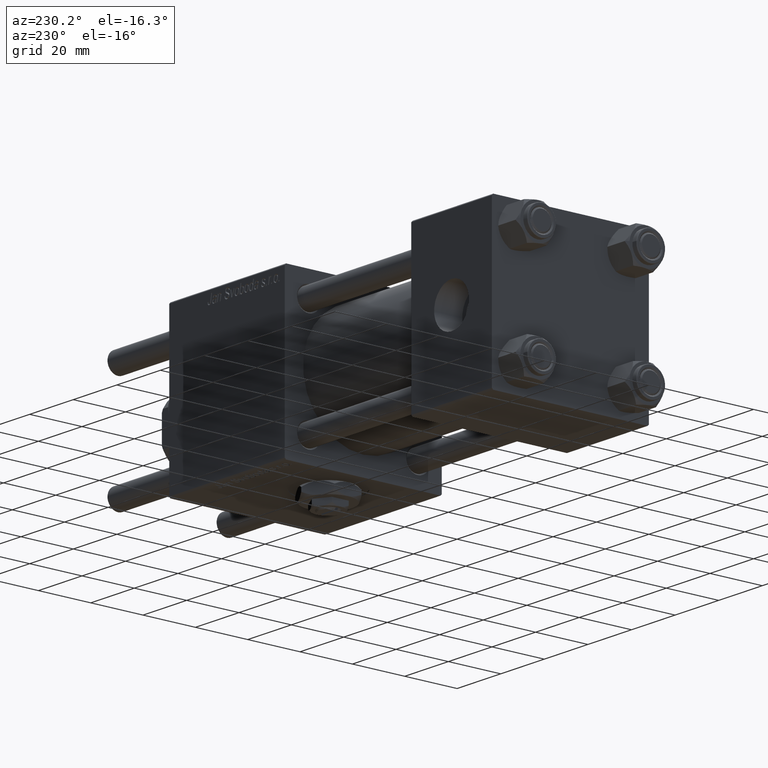
[diagram: clean part render]
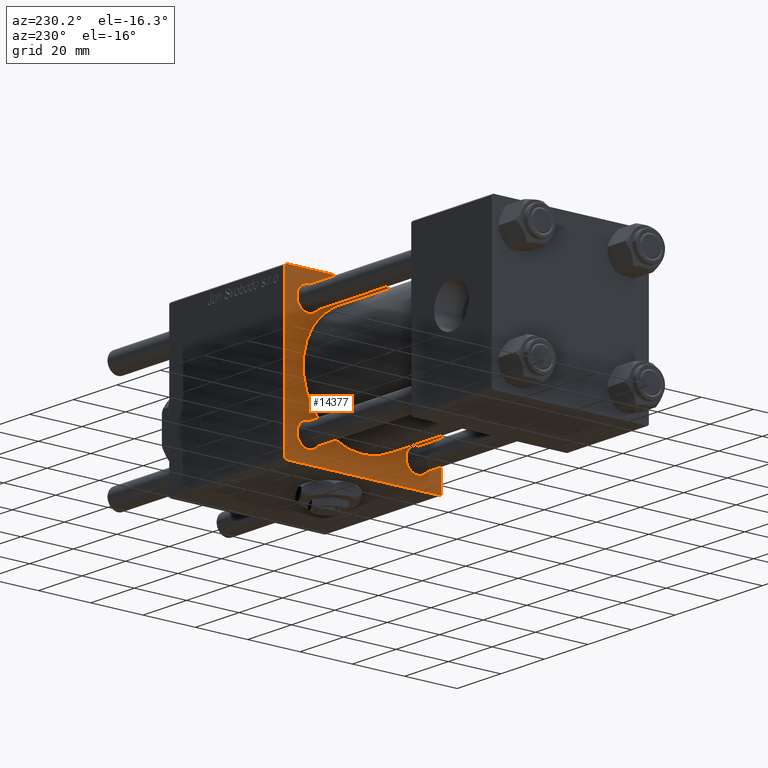
[diagram: same view with one face highlighted and labeled with its STEP entity id]
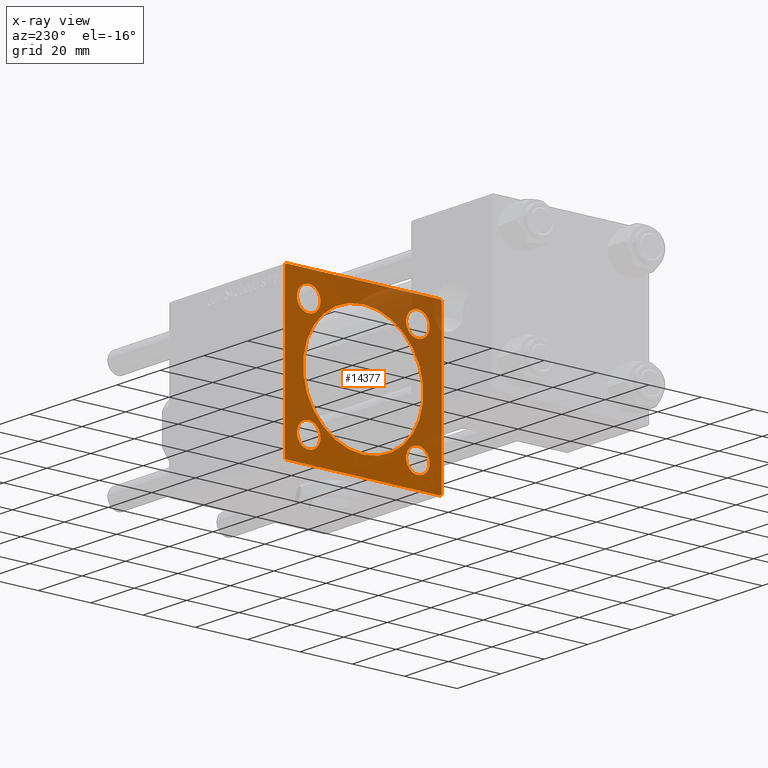
[diagram: x-ray of the same camera — body ghosted, the highlighted face saturated]
A machine part, auxiliary view. The second image highlights one B-rep face of the part: STEP entity #14377.
The next image is the same camera in x-ray: the body ghosted, the highlighted face saturated — about 36% of this face is hidden behind the body in this view.
In plain terms, the highlighted planar face has unit normal (-1, 0, 0).
Its self-contained STEP definition (entity closure, byte-faithful):
#533 = ORIENTED_EDGE ( 'NONE', *, *, #36205, .T. ) ;
#667 = DIRECTION ( 'NONE',  ( 0.000000000000000000, 0.000000000000000000, 1.000000000000000000 ) ) ;
#893 = EDGE_CURVE ( 'NONE', #53992, #23122, #50112, .T. ) ;
#944 = DIRECTION ( 'NONE',  ( 0.000000000000000000, -1.000000000000000000, -1.156482317317871478E-16 ) ) ;
#1027 = DIRECTION ( 'NONE',  ( 0.000000000000000000, 0.000000000000000000, 1.000000000000000000 ) ) ;
#1479 = FACE_BOUND ( 'NONE', #21479, .T. ) ;
#2165 = VECTOR ( 'NONE', #2863, 1000.000000000000114 ) ;
#2740 = AXIS2_PLACEMENT_3D ( 'NONE', #45049, #9229, #54820 ) ;
#2863 = DIRECTION ( 'NONE',  ( -0.000000000000000000, -0.7071067811865474617, -0.7071067811865474617 ) ) ;
#3389 = CARTESIAN_POINT ( 'NONE',  ( 95.00000000000000000, -29.74999999999999645, -29.74999999999999645 ) ) ;
#3453 = LINE ( 'NONE', #43712, #2165 ) ;
#3768 = DIRECTION ( 'NONE',  ( 1.000000000000000000, 0.000000000000000000, 0.000000000000000000 ) ) ;
#4075 = CARTESIAN_POINT ( 'NONE',  ( 95.00000000000000000, -20.84999999999999076, -16.35000000000000142 ) ) ;
#4535 = CARTESIAN_POINT ( 'NONE',  ( 95.00000000000000000, -20.84999999999999076, 20.85000000000000497 ) ) ;
#4653 = EDGE_CURVE ( 'NONE', #36532, #13445, #34839, .T. ) ;
#4764 = DIRECTION ( 'NONE',  ( -0.000000000000000000, 0.000000000000000000, 1.000000000000000000 ) ) ;
#4957 = AXIS2_PLACEMENT_3D ( 'NONE', #27554, #15133, #4764 ) ;
#5937 = FACE_BOUND ( 'NONE', #26882, .T. ) ;
#6933 = AXIS2_PLACEMENT_3D ( 'NONE', #44326, #3768, #57947 ) ;
#7696 = CARTESIAN_POINT ( 'NONE',  ( 95.00000000000000000, 20.84999999999999787, -20.85000000000000142 ) ) ;
#7849 = ORIENTED_EDGE ( 'NONE', *, *, #4653, .F. ) ;
#8818 = CARTESIAN_POINT ( 'NONE',  ( 95.00000000000000000, 30.00000000000000000, 29.50000000000000000 ) ) ;
#9229 = DIRECTION ( 'NONE',  ( 1.000000000000000000, -0.000000000000000000, 0.000000000000000000 ) ) ;
#9659 = VECTOR ( 'NONE', #56297, 1000.000000000000000 ) ;
#9792 = CARTESIAN_POINT ( 'NONE',  ( 95.00000000000000000, 29.74999999999999645, 29.74999999999999645 ) ) ;
#9933 = DIRECTION ( 'NONE',  ( 1.000000000000000000, -0.000000000000000000, 0.000000000000000000 ) ) ;
#10381 = CARTESIAN_POINT ( 'NONE',  ( 95.00000000000000000, -29.50000000000000000, -30.00000000000000000 ) ) ;
#10686 = PLANE ( 'NONE',  #4957 ) ;
#11412 = EDGE_LOOP ( 'NONE', ( #40376, #37688 ) ) ;
#11747 = VERTEX_POINT ( 'NONE', #29764 ) ;
#11768 = EDGE_CURVE ( 'NONE', #36532, #23122, #39520, .T. ) ;
#11924 = VERTEX_POINT ( 'NONE', #37703 ) ;
#12122 = AXIS2_PLACEMENT_3D ( 'NONE', #45269, #14200, #27200 ) ;
#12569 = EDGE_CURVE ( 'NONE', #34763, #53778, #53099, .T. ) ;
#13063 = EDGE_CURVE ( 'NONE', #53992, #18187, #32559, .T. ) ;
#13195 = VERTEX_POINT ( 'NONE', #10381 ) ;
#13386 = CARTESIAN_POINT ( 'NONE',  ( 95.00000000000000000, 20.84999999999999787, 16.34999999999999787 ) ) ;
#13445 = VERTEX_POINT ( 'NONE', #46043 ) ;
#13569 = ORIENTED_EDGE ( 'NONE', *, *, #13063, .T. ) ;
#13707 = EDGE_CURVE ( 'NONE', #36747, #23785, #20039, .T. ) ;
#13903 = EDGE_CURVE ( 'NONE', #18187, #20379, #42667, .T. ) ;
#14200 = DIRECTION ( 'NONE',  ( 1.000000000000000000, 0.000000000000000000, 0.000000000000000000 ) ) ;
#14377 = ADVANCED_FACE ( 'NONE', ( #14840, #5937, #42025, #1479, #19552, #37591 ), #10686, .T. ) ;
#14433 = ORIENTED_EDGE ( 'NONE', *, *, #51852, .T. ) ;
#14673 = ORIENTED_EDGE ( 'NONE', *, *, #11768, .T. ) ;
#14761 = CIRCLE ( 'NONE', #24981, 4.500000000000003553 ) ;
#14840 = FACE_BOUND ( 'NONE', #11412, .T. ) ;
#14876 = VECTOR ( 'NONE', #53142, 1000.000000000000114 ) ;
#14898 = DIRECTION ( 'NONE',  ( 1.000000000000000000, -0.000000000000000000, 0.000000000000000000 ) ) ;
#15133 = DIRECTION ( 'NONE',  ( -1.000000000000000000, 0.000000000000000000, -0.000000000000000000 ) ) ;
#15330 = AXIS2_PLACEMENT_3D ( 'NONE', #4535, #14898, #667 ) ;
#15508 = AXIS2_PLACEMENT_3D ( 'NONE', #26046, #20438, #38481 ) ;
#15989 = VECTOR ( 'NONE', #17400, 1000.000000000000000 ) ;
#16364 = CARTESIAN_POINT ( 'NONE',  ( 95.00000000000000000, 29.50000000000000000, -29.99999999999999289 ) ) ;
#16512 = EDGE_LOOP ( 'NONE', ( #24934, #43181, #7849, #14673, #27202, #13569, #37612, #24656 ) ) ;
#16713 = VERTEX_POINT ( 'NONE', #4075 ) ;
#17400 = DIRECTION ( 'NONE',  ( 0.000000000000000000, 0.000000000000000000, -1.000000000000000000 ) ) ;
#18187 = VERTEX_POINT ( 'NONE', #8818 ) ;
#18247 = ORIENTED_EDGE ( 'NONE', *, *, #29584, .T. ) ;
#18263 = DIRECTION ( 'NONE',  ( 1.000000000000000000, -0.000000000000000000, 0.000000000000000000 ) ) ;
#18542 = CARTESIAN_POINT ( 'NONE',  ( 95.00000000000000000, -30.00000000000000000, 29.49999999999999289 ) ) ;
#19552 = FACE_BOUND ( 'NONE', #34561, .T. ) ;
#20039 = CIRCLE ( 'NONE', #15330, 4.500000000000003553 ) ;
#20379 = VERTEX_POINT ( 'NONE', #26618 ) ;
#20411 = VECTOR ( 'NONE', #52239, 1000.000000000000000 ) ;
#20438 = DIRECTION ( 'NONE',  ( 1.000000000000000000, -0.000000000000000000, 0.000000000000000000 ) ) ;
#20699 = EDGE_CURVE ( 'NONE', #23785, #36747, #46403, .T. ) ;
#20911 = VECTOR ( 'NONE', #43965, 1000.000000000000114 ) ;
#21384 = CIRCLE ( 'NONE', #23301, 4.500000000000003553 ) ;
#21442 = LINE ( 'NONE', #3389, #14876 ) ;
#21479 = EDGE_LOOP ( 'NONE', ( #14433, #18247 ) ) ;
#21825 = VERTEX_POINT ( 'NONE', #35063 ) ;
#22058 = CARTESIAN_POINT ( 'NONE',  ( 95.00000000000000000, -29.74999999999999645, 29.74999999999999645 ) ) ;
#23122 = VERTEX_POINT ( 'NONE', #42212 ) ;
#23301 = AXIS2_PLACEMENT_3D ( 'NONE', #33767, #51843, #47691 ) ;
#23426 = EDGE_LOOP ( 'NONE', ( #35814, #43144 ) ) ;
#23785 = VERTEX_POINT ( 'NONE', #35697 ) ;
#24656 = ORIENTED_EDGE ( 'NONE', *, *, #28052, .T. ) ;
#24907 = CIRCLE ( 'NONE', #6933, 23.00000000000000000 ) ;
#24934 = ORIENTED_EDGE ( 'NONE', *, *, #42147, .T. ) ;
#24981 = AXIS2_PLACEMENT_3D ( 'NONE', #35481, #57395, #48213 ) ;
#26046 = CARTESIAN_POINT ( 'NONE',  ( 95.00000000000000000, -20.84999999999999076, -20.85000000000000497 ) ) ;
#26238 = CARTESIAN_POINT ( 'NONE',  ( 95.00000000000000000, -20.84999999999999076, 20.85000000000000497 ) ) ;
#26618 = CARTESIAN_POINT ( 'NONE',  ( 95.00000000000000000, 30.00000000000000000, -29.49999999999997868 ) ) ;
#26882 = EDGE_LOOP ( 'NONE', ( #57505, #533 ) ) ;
#26959 = DIRECTION ( 'NONE',  ( 0.000000000000000000, 0.7071067811865474617, -0.7071067811865474617 ) ) ;
#27200 = DIRECTION ( 'NONE',  ( 0.000000000000000000, 0.000000000000000000, -1.000000000000000000 ) ) ;
#27202 = ORIENTED_EDGE ( 'NONE', *, *, #893, .F. ) ;
#27554 = CARTESIAN_POINT ( 'NONE',  ( 95.00000000000000000, 0.000000000000000000, 0.000000000000000000 ) ) ;
#28052 = EDGE_CURVE ( 'NONE', #20379, #49873, #3453, .T. ) ;
#29584 = EDGE_CURVE ( 'NONE', #11924, #16713, #55184, .T. ) ;
#29653 = EDGE_CURVE ( 'NONE', #11747, #43233, #49527, .T. ) ;
#29764 = CARTESIAN_POINT ( 'NONE',  ( 95.00000000000000000, 20.84999999999999787, -25.35000000000000497 ) ) ;
#30231 = CARTESIAN_POINT ( 'NONE',  ( 95.00000000000000000, 2.146024240737012665E-16, -23.00000000000000000 ) ) ;
#30514 = CARTESIAN_POINT ( 'NONE',  ( 95.00000000000000000, 20.84999999999999787, 25.35000000000000497 ) ) ;
#30580 = EDGE_CURVE ( 'NONE', #41255, #21825, #24907, .T. ) ;
#32329 = CARTESIAN_POINT ( 'NONE',  ( 95.00000000000000000, 30.00000000000000000, 30.00000000000000000 ) ) ;
#32559 = LINE ( 'NONE', #9792, #46492 ) ;
#33767 = CARTESIAN_POINT ( 'NONE',  ( 95.00000000000000000, -20.84999999999999076, -20.85000000000000497 ) ) ;
#33807 = CARTESIAN_POINT ( 'NONE',  ( 95.00000000000000000, 20.84999999999999787, -16.34999999999999787 ) ) ;
#33942 = CIRCLE ( 'NONE', #2740, 4.500000000000003553 ) ;
#34166 = LINE ( 'NONE', #35858, #20411 ) ;
#34453 = CARTESIAN_POINT ( 'NONE',  ( 95.00000000000000000, -20.84999999999999076, 25.35000000000000853 ) ) ;
#34561 = EDGE_LOOP ( 'NONE', ( #42097, #57130 ) ) ;
#34763 = VERTEX_POINT ( 'NONE', #30514 ) ;
#34839 = LINE ( 'NONE', #35137, #15989 ) ;
#35063 = CARTESIAN_POINT ( 'NONE',  ( 95.00000000000000000, -2.602085213965210642E-15, 23.00000000000000000 ) ) ;
#35137 = CARTESIAN_POINT ( 'NONE',  ( 95.00000000000000000, -30.00000000000000000, 29.99999999999999289 ) ) ;
#35481 = CARTESIAN_POINT ( 'NONE',  ( 95.00000000000000000, 20.84999999999999787, 20.85000000000000142 ) ) ;
#35697 = CARTESIAN_POINT ( 'NONE',  ( 95.00000000000000000, -20.84999999999999076, 16.35000000000000142 ) ) ;
#35814 = ORIENTED_EDGE ( 'NONE', *, *, #50057, .T. ) ;
#35858 = CARTESIAN_POINT ( 'NONE',  ( 95.00000000000000000, 30.00000000000000000, -29.99999999999999289 ) ) ;
#36205 = EDGE_CURVE ( 'NONE', #53778, #34763, #14761, .T. ) ;
#36296 = DIRECTION ( 'NONE',  ( 0.000000000000000000, 0.000000000000000000, 1.000000000000000000 ) ) ;
#36532 = VERTEX_POINT ( 'NONE', #18542 ) ;
#36747 = VERTEX_POINT ( 'NONE', #34453 ) ;
#37591 = FACE_OUTER_BOUND ( 'NONE', #16512, .T. ) ;
#37606 = CIRCLE ( 'NONE', #12122, 23.00000000000000000 ) ;
#37612 = ORIENTED_EDGE ( 'NONE', *, *, #13903, .T. ) ;
#37688 = ORIENTED_EDGE ( 'NONE', *, *, #20699, .T. ) ;
#37703 = CARTESIAN_POINT ( 'NONE',  ( 95.00000000000000000, -20.84999999999999076, -25.35000000000000853 ) ) ;
#38155 = AXIS2_PLACEMENT_3D ( 'NONE', #7696, #43507, #52420 ) ;
#38481 = DIRECTION ( 'NONE',  ( 0.000000000000000000, 0.000000000000000000, 1.000000000000000000 ) ) ;
#38519 = VECTOR ( 'NONE', #944, 1000.000000000000000 ) ;
#39520 = LINE ( 'NONE', #22058, #20911 ) ;
#40376 = ORIENTED_EDGE ( 'NONE', *, *, #13707, .T. ) ;
#41255 = VERTEX_POINT ( 'NONE', #30231 ) ;
#41574 = CARTESIAN_POINT ( 'NONE',  ( 95.00000000000000000, 20.84999999999999787, 20.85000000000000142 ) ) ;
#42025 = FACE_BOUND ( 'NONE', #23426, .T. ) ;
#42097 = ORIENTED_EDGE ( 'NONE', *, *, #46957, .T. ) ;
#42147 = EDGE_CURVE ( 'NONE', #49873, #13195, #34166, .T. ) ;
#42212 = CARTESIAN_POINT ( 'NONE',  ( 95.00000000000000000, -29.50000000000000000, 29.99999999999999289 ) ) ;
#42667 = LINE ( 'NONE', #51571, #9659 ) ;
#43144 = ORIENTED_EDGE ( 'NONE', *, *, #29653, .T. ) ;
#43181 = ORIENTED_EDGE ( 'NONE', *, *, #43879, .T. ) ;
#43233 = VERTEX_POINT ( 'NONE', #33807 ) ;
#43507 = DIRECTION ( 'NONE',  ( 1.000000000000000000, -0.000000000000000000, 0.000000000000000000 ) ) ;
#43712 = CARTESIAN_POINT ( 'NONE',  ( 95.00000000000000000, 29.74999999999999645, -29.74999999999999645 ) ) ;
#43879 = EDGE_CURVE ( 'NONE', #13195, #13445, #21442, .T. ) ;
#43965 = DIRECTION ( 'NONE',  ( -0.000000000000000000, 0.7071067811865474617, 0.7071067811865474617 ) ) ;
#44326 = CARTESIAN_POINT ( 'NONE',  ( 95.00000000000000000, -2.602085213965210642E-15, 0.000000000000000000 ) ) ;
#45049 = CARTESIAN_POINT ( 'NONE',  ( 95.00000000000000000, 20.84999999999999787, -20.85000000000000142 ) ) ;
#45269 = CARTESIAN_POINT ( 'NONE',  ( 95.00000000000000000, -2.602085213965210642E-15, 0.000000000000000000 ) ) ;
#45765 = CARTESIAN_POINT ( 'NONE',  ( 95.00000000000000000, 29.50000000000000000, 30.00000000000000000 ) ) ;
#46043 = CARTESIAN_POINT ( 'NONE',  ( 95.00000000000000000, -30.00000000000000000, -29.49999999999998579 ) ) ;
#46403 = CIRCLE ( 'NONE', #51143, 4.500000000000003553 ) ;
#46492 = VECTOR ( 'NONE', #26959, 1000.000000000000114 ) ;
#46957 = EDGE_CURVE ( 'NONE', #21825, #41255, #37606, .T. ) ;
#47691 = DIRECTION ( 'NONE',  ( 0.000000000000000000, 0.000000000000000000, 1.000000000000000000 ) ) ;
#48213 = DIRECTION ( 'NONE',  ( 0.000000000000000000, 0.000000000000000000, 1.000000000000000000 ) ) ;
#49527 = CIRCLE ( 'NONE', #38155, 4.500000000000003553 ) ;
#49873 = VERTEX_POINT ( 'NONE', #16364 ) ;
#50057 = EDGE_CURVE ( 'NONE', #43233, #11747, #33942, .T. ) ;
#50112 = LINE ( 'NONE', #32329, #38519 ) ;
#51143 = AXIS2_PLACEMENT_3D ( 'NONE', #26238, #18263, #36296 ) ;
#51571 = CARTESIAN_POINT ( 'NONE',  ( 95.00000000000000000, 30.00000000000000000, 30.00000000000000000 ) ) ;
#51843 = DIRECTION ( 'NONE',  ( 1.000000000000000000, -0.000000000000000000, 0.000000000000000000 ) ) ;
#51852 = EDGE_CURVE ( 'NONE', #16713, #11924, #21384, .T. ) ;
#52239 = DIRECTION ( 'NONE',  ( 0.000000000000000000, -1.000000000000000000, -1.156482317317871478E-16 ) ) ;
#52420 = DIRECTION ( 'NONE',  ( 0.000000000000000000, 0.000000000000000000, 1.000000000000000000 ) ) ;
#53099 = CIRCLE ( 'NONE', #54035, 4.500000000000003553 ) ;
#53142 = DIRECTION ( 'NONE',  ( 0.000000000000000000, -0.7071067811865474617, 0.7071067811865474617 ) ) ;
#53778 = VERTEX_POINT ( 'NONE', #13386 ) ;
#53992 = VERTEX_POINT ( 'NONE', #45765 ) ;
#54035 = AXIS2_PLACEMENT_3D ( 'NONE', #41574, #9933, #1027 ) ;
#54820 = DIRECTION ( 'NONE',  ( 0.000000000000000000, 0.000000000000000000, 1.000000000000000000 ) ) ;
#55184 = CIRCLE ( 'NONE', #15508, 4.500000000000003553 ) ;
#56297 = DIRECTION ( 'NONE',  ( 0.000000000000000000, 0.000000000000000000, -1.000000000000000000 ) ) ;
#57130 = ORIENTED_EDGE ( 'NONE', *, *, #30580, .T. ) ;
#57395 = DIRECTION ( 'NONE',  ( 1.000000000000000000, -0.000000000000000000, 0.000000000000000000 ) ) ;
#57505 = ORIENTED_EDGE ( 'NONE', *, *, #12569, .T. ) ;
#57947 = DIRECTION ( 'NONE',  ( 0.000000000000000000, 0.000000000000000000, -1.000000000000000000 ) ) ;